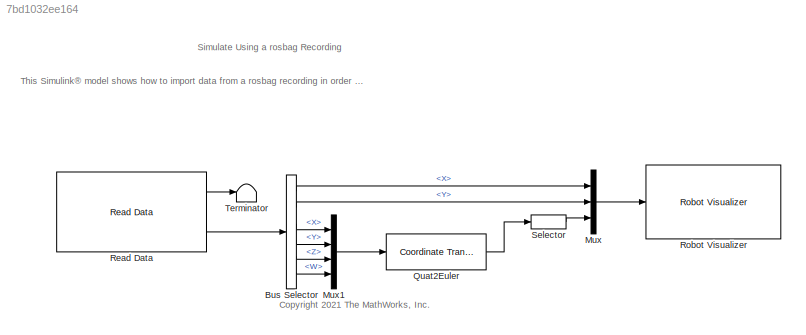
MODEL slx_7bd1032ee164
KIND model
CONFIG AbsTol = auto
CONFIG EnableMultiTasking = off
CONFIG FixedStep = auto
CONFIG MaxStep = auto
CONFIG MinStep = auto
CONFIG PreLoadFcn = load('turtleBotMazeMap.mat')
CONFIG RelTol = 1e-3
CONFIG SampleTimeConstraint = Unconstrained
CONFIG SolverName = VariableStepAuto
CONFIG StartTime = 0.0
CONFIG StopTime = 80
WORKSPACE source: mxarray member
WORKSPACE Logfile_Data_Object: robotics.ros.BagSelection (value not decoded)
WORKSPACE Logfile_Path = '<userpath>\\OneDrive - MathWorks<path>'
WORKSPACE Logfile_Playback_Duration = 80
WORKSPACE Logfile_Playback_Offset = 0
BLOCK [BusSelector] Bus Selector
  OutputSignals = Pose.Pose.Position.X,Pose.Pose.Position.Y,Pose.Pose.Orientation.X,Pose.Pose.Orientation.Y,Pose.Pose.Orientation.Z,Pose.Pose.Orientation.W
  Ports = [1, 6]
BLOCK [Mux] Mux
  DisplayOption = bar
  Inputs = 3
  Ports = [3, 1]
BLOCK [Mux] Mux1
  DisplayOption = bar
  Ports = [4, 1]
BLOCK [Reference] Quat2Euler  REF=robotcorelib/Coordinate Transformation Conversion
  Ports = [1, 1]
  SourceBlock = robotcorelib/Coordinate Transformation Conversion
  SourceProductBaseCode = NV,RO,RR,UV
  SourceType = robotics.slcore.internal.block.CoordinateTransformationConversion
BLOCK [Reference] Read Data  REF=robotlib/Read Data
  Ports = [0, 2]
  SourceBlock = robotlib/Read Data
  SourceProductBaseCode = RR
  SourceType = Read Data from Logfile
BLOCK [Reference] Robot Visualizer  REF=mobileRoboticsLib/Environments/Robot Visualizer
  Ports = [1]
  SourceBlock = mobileRoboticsLib/Environments/Robot Visualizer
  SourceProductName = Mobile Robotics Simulation Toolbox
  SourceType = Visualizer2D
BLOCK [Selector] Selector
  IndexOptions = Index vector (dialog)
  Indices = 3
  InputPortWidth = 3
  OutputSizes = 1
  Ports = [1, 1]
BLOCK [Terminator] Terminator
ANNOTATION (root): This Simulink® model shows how to import data from a rosbag recording in order to visualize the data and develop algorithms using simulations. This model the Mobile Robotics Simulation Toolbox MATLAB® Add-on . For more information on using ROS Log Files in Simulink visit this documentation page .
ANNOTATION (root): Simulate Using a rosbag Recording
ANNOTATION (root): <copyright redacted>
LINE Bus Selector:1 -> Mux:1
LINE Bus Selector:2 -> Mux:2
LINE Bus Selector:3 -> Mux1:1
LINE Bus Selector:4 -> Mux1:2
LINE Bus Selector:5 -> Mux1:3
LINE Bus Selector:6 -> Mux1:4
LINE Mux1:1 -> Quat2Euler:1
LINE Mux:1 -> Robot Visualizer:1
LINE Quat2Euler:1 -> Selector:1
LINE Read Data:1 -> Terminator:1
LINE Read Data:2 -> Bus Selector:1
LINE Selector:1 -> Mux:3
